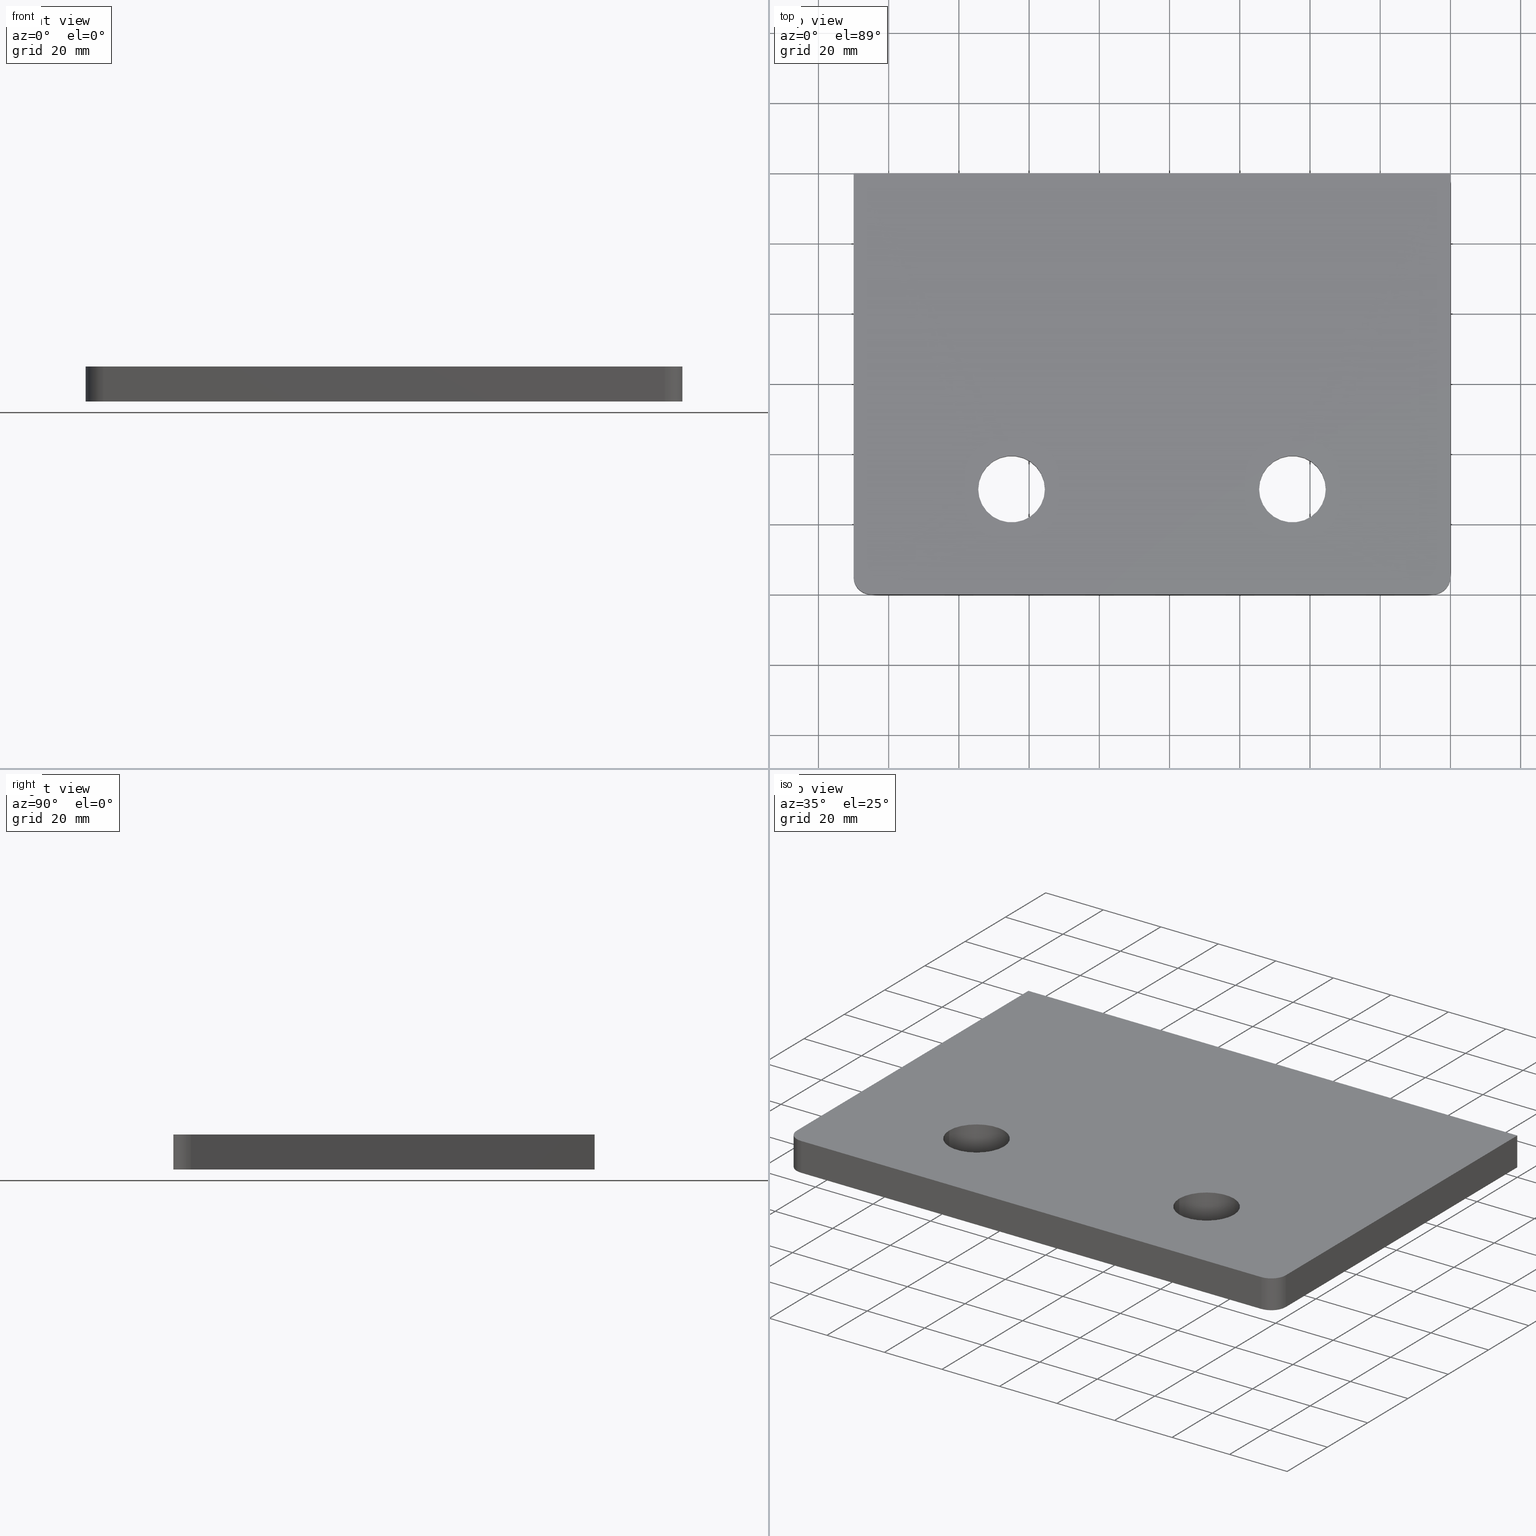
[diagram: canonical four-view strip — front | top / right | iso, engineering-drawing reading convention]
A machine part, canonical four-view strip (front | top / right | iso — engineering-drawing reading convention). The complete STEP part file that produces these views, byte-faithful:
ISO-10303-21;
HEADER;
FILE_DESCRIPTION (( 'STEP AP203' ),
    '1' );
FILE_NAME ('20-11_REV_.step',
    '2026-01-19T05:52:12',
    ( '' ),
    ( '' ),
    'SwSTEP 2.0',
    'SolidWorks 2025',
    '' );
FILE_SCHEMA (( 'CONFIG_CONTROL_DESIGN' ));
ENDSEC;

DATA;
#1 = VERTEX_POINT ( 'NONE', #235 ) ;
#2 = PRODUCT_DEFINITION_SHAPE ( 'NONE', 'NONE',  #125 ) ;
#3 = DIRECTION ( 'NONE',  ( 0.000000000000000000, -0.000000000000000000, 1.000000000000000000 ) ) ;
#4 = PERSON_AND_ORGANIZATION ( #175, #405 ) ;
#5 = ADVANCED_FACE ( 'NONE', ( #243 ), #33, .T. ) ;
#6 = LOCAL_TIME ( 16, 52, 12.00000000000000000, #100 ) ;
#7 = DIRECTION ( 'NONE',  ( 1.000000000000000000, 1.296684846156020550E-16, 0.000000000000000000 ) ) ;
#8 = PERSON_AND_ORGANIZATION ( #175, #405 ) ;
#9 = CARTESIAN_POINT ( 'NONE',  ( -170.0000000000000000, 4.999999999999978684, -10.00000000000000000 ) ) ;
#10 = EDGE_CURVE ( 'NONE', #270, #453, #131, .T. ) ;
#11 = DIRECTION ( 'NONE',  ( 1.000000000000000000, -8.128421619622342965E-33, 0.000000000000000000 ) ) ;
#12 = CC_DESIGN_PERSON_AND_ORGANIZATION_ASSIGNMENT ( #224, #362, ( #125 ) ) ;
#13 = APPROVAL_PERSON_ORGANIZATION ( #356, #429, #39 ) ;
#14 = CARTESIAN_POINT ( 'NONE',  ( -125.0000000000000000, 29.99999999999999289, 3.061616997868380183E-16 ) ) ;
#15 = VERTEX_POINT ( 'NONE', #201 ) ;
#16 = DATE_AND_TIME ( #286, #230 ) ;
#17 = ADVANCED_FACE ( 'NONE', ( #342 ), #411, .F. ) ;
#18 = ORIENTED_EDGE ( 'NONE', *, *, #139, .T. ) ;
#19 = AXIS2_PLACEMENT_3D ( 'NONE', #137, #183, #315 ) ;
#20 = VECTOR ( 'NONE', #174, 1000.000000000000000 ) ;
#21 = AXIS2_PLACEMENT_3D ( 'NONE', #265, #120, #145 ) ;
#22 = DIRECTION ( 'NONE',  ( 1.000000000000000000, 0.000000000000000000, 0.000000000000000000 ) ) ;
#23 = DIRECTION ( 'NONE',  ( -0.000000000000000000, -0.000000000000000000, 1.000000000000000000 ) ) ;
#24 = VERTEX_POINT ( 'NONE', #397 ) ;
#25 = DIRECTION ( 'NONE',  ( 0.000000000000000000, 0.000000000000000000, 1.000000000000000000 ) ) ;
#26 = ORIENTED_EDGE ( 'NONE', *, *, #275, .T. ) ;
#27 = EDGE_LOOP ( 'NONE', ( #237, #146 ) ) ;
#28 = CARTESIAN_POINT ( 'NONE',  ( -170.0000000000000000, -2.204364238465235191E-14, -10.00000000000000000 ) ) ;
#29 = ORIENTED_EDGE ( 'NONE', *, *, #282, .T. ) ;
#30 = CC_DESIGN_PERSON_AND_ORGANIZATION_ASSIGNMENT ( #4, #94, ( #352 ) ) ;
#31 = FACE_OUTER_BOUND ( 'NONE', #404, .T. ) ;
#32 = VECTOR ( 'NONE', #156, 1000.000000000000000 ) ;
#33 = CYLINDRICAL_SURFACE ( 'NONE', #171, 5.000000000000004441 ) ;
#34 = CC_DESIGN_SECURITY_CLASSIFICATION ( #261, ( #367 ) ) ;
#35 =( LENGTH_UNIT ( ) NAMED_UNIT ( * ) SI_UNIT ( .MILLI., .METRE. ) );
#36 = DIRECTION ( 'NONE',  ( 1.000000000000000000, 0.000000000000000000, 0.000000000000000000 ) ) ;
#37 =( NAMED_UNIT ( * ) SI_UNIT ( $, .STERADIAN. ) SOLID_ANGLE_UNIT ( ) );
#38 = DIRECTION ( 'NONE',  ( 1.000000000000000000, 0.000000000000000000, -0.000000000000000000 ) ) ;
#39 = APPROVAL_ROLE ( '' ) ;
#40 = DIRECTION ( 'NONE',  ( 1.000000000000000000, 0.000000000000000000, 0.000000000000000000 ) ) ;
#41 = PERSON_AND_ORGANIZATION ( #175, #405 ) ;
#42 = AXIS2_PLACEMENT_3D ( 'NONE', #165, #309, #40 ) ;
#43 = PLANE ( 'NONE',  #268 ) ;
#44 = LINE ( 'NONE', #70, #437 ) ;
#45 = COORDINATED_UNIVERSAL_TIME_OFFSET ( 10, 0, .AHEAD. ) ;
#46 = LINE ( 'NONE', #336, #432 ) ;
#47 = VERTEX_POINT ( 'NONE', #323 ) ;
#48 = PERSON_AND_ORGANIZATION ( #175, #405 ) ;
#49 = CC_DESIGN_APPROVAL ( #109, ( #261 ) ) ;
#50 = EDGE_LOOP ( 'NONE', ( #88, #240, #108, #375 ) ) ;
#51 = EDGE_CURVE ( 'NONE', #262, #64, #69, .T. ) ;
#52 = ORIENTED_EDGE ( 'NONE', *, *, #178, .T. ) ;
#53 = CARTESIAN_POINT ( 'NONE',  ( 4.064210809811171209E-32, 4.999999999999999112, -10.00000000000000000 ) ) ;
#54 = CC_DESIGN_APPROVAL ( #429, ( #367 ) ) ;
#55 = AXIS2_PLACEMENT_3D ( 'NONE', #14, #200, #303 ) ;
#56 = LINE ( 'NONE', #222, #419 ) ;
#57 = VERTEX_POINT ( 'NONE', #359 ) ;
#58 = CYLINDRICAL_SURFACE ( 'NONE', #199, 5.000000000000000000 ) ;
#59 = ORIENTED_EDGE ( 'NONE', *, *, #220, .T. ) ;
#60 = DIRECTION ( 'NONE',  ( 0.000000000000000000, 0.000000000000000000, 1.000000000000000000 ) ) ;
#61 = DIRECTION ( 'NONE',  ( 1.000000000000000000, 1.296684846156020550E-16, -0.000000000000000000 ) ) ;
#62 = DIRECTION ( 'NONE',  ( 1.000000000000000000, 0.000000000000000000, 0.000000000000000000 ) ) ;
#63 = ADVANCED_FACE ( 'NONE', ( #212 ), #353, .T. ) ;
#64 = VERTEX_POINT ( 'NONE', #280 ) ;
#65 = DIRECTION ( 'NONE',  ( -0.000000000000000000, -0.000000000000000000, -1.000000000000000000 ) ) ;
#66 = CC_DESIGN_DATE_AND_TIME_ASSIGNMENT ( #16, #142, ( #125 ) ) ;
#67 = ORIENTED_EDGE ( 'NONE', *, *, #155, .F. ) ;
#68 = CARTESIAN_POINT ( 'NONE',  ( -134.5000000000000000, 29.99999999999999289, -10.00000000000000000 ) ) ;
#69 = CIRCLE ( 'NONE', #144, 9.499999999999994671 ) ;
#70 = CARTESIAN_POINT ( 'NONE',  ( 9.754105943546810464E-31, 120.0000000000000000, -10.00000000000000000 ) ) ;
#71 = EDGE_CURVE ( 'NONE', #270, #47, #410, .T. ) ;
#72 = CARTESIAN_POINT ( 'NONE',  ( -35.50000000000001421, 29.99999999999999289, 0.000000000000000000 ) ) ;
#73 = DIRECTION ( 'NONE',  ( 0.000000000000000000, -0.000000000000000000, 1.000000000000000000 ) ) ;
#74 = LINE ( 'NONE', #9, #126 ) ;
#75 = DATE_AND_TIME ( #147, #116 ) ;
#76 = FACE_OUTER_BOUND ( 'NONE', #232, .T. ) ;
#77 = VECTOR ( 'NONE', #117, 1000.000000000000000 ) ;
#78 = FACE_BOUND ( 'NONE', #27, .T. ) ;
#79 = DIRECTION ( 'NONE',  ( -1.000000000000000000, 0.000000000000000000, 0.000000000000000000 ) ) ;
#80 = ORIENTED_EDGE ( 'NONE', *, *, #373, .F. ) ;
#81 = ORIENTED_EDGE ( 'NONE', *, *, #233, .T. ) ;
#82 = ORIENTED_EDGE ( 'NONE', *, *, #114, .T. ) ;
#83 = LINE ( 'NONE', #194, #32 ) ;
#84 = ADVANCED_FACE ( 'NONE', ( #78, #96, #76 ), #133, .T. ) ;
#85 = PLANE ( 'NONE',  #325 ) ;
#86 = EDGE_LOOP ( 'NONE', ( #345, #442 ) ) ;
#87 = FACE_OUTER_BOUND ( 'NONE', #229, .T. ) ;
#88 = ORIENTED_EDGE ( 'NONE', *, *, #242, .F. ) ;
#89 = LINE ( 'NONE', #326, #452 ) ;
#90 = DIRECTION ( 'NONE',  ( 1.000000000000000000, 0.000000000000000000, 0.000000000000000000 ) ) ;
#91 = APPLICATION_PROTOCOL_DEFINITION ( 'international standard', 'config_control_design', 1994, #343 ) ;
#92 = AXIS2_PLACEMENT_3D ( 'NONE', #344, #73, #207 ) ;
#93 = ORIENTED_EDGE ( 'NONE', *, *, #454, .T. ) ;
#94 = PERSON_AND_ORGANIZATION_ROLE ( 'design_owner' ) ;
#95 = VERTEX_POINT ( 'NONE', #101 ) ;
#96 = FACE_BOUND ( 'NONE', #297, .T. ) ;
#97 = LINE ( 'NONE', #455, #20 ) ;
#98 = AXIS2_PLACEMENT_3D ( 'NONE', #434, #269, #412 ) ;
#99 = CARTESIAN_POINT ( 'NONE',  ( 0.000000000000000000, 0.000000000000000000, 0.000000000000000000 ) ) ;
#100 = COORDINATED_UNIVERSAL_TIME_OFFSET ( 10, 0, .AHEAD. ) ;
#101 = CARTESIAN_POINT ( 'NONE',  ( -54.50000000000000711, 29.99999999999999289, 3.061616997868380183E-16 ) ) ;
#102 = PERSON_AND_ORGANIZATION_ROLE ( 'creator' ) ;
#103 = DIRECTION ( 'NONE',  ( 1.296684846156020550E-16, -1.000000000000000000, 0.000000000000000000 ) ) ;
#104 = FACE_OUTER_BOUND ( 'NONE', #115, .T. ) ;
#105 = CARTESIAN_POINT ( 'NONE',  ( -134.5000000000000000, 29.99999999999999289, 3.061616997868380183E-16 ) ) ;
#106 = LINE ( 'NONE', #414, #312 ) ;
#107 = EDGE_LOOP ( 'NONE', ( #195, #153, #52, #415 ) ) ;
#108 = ORIENTED_EDGE ( 'NONE', *, *, #155, .T. ) ;
#109 = APPROVAL ( #295, 'UNSPECIFIED' ) ;
#110 = AXIS2_PLACEMENT_3D ( 'NONE', #389, #132, #123 ) ;
#111 = ORIENTED_EDGE ( 'NONE', *, *, #454, .F. ) ;
#112 = ORIENTED_EDGE ( 'NONE', *, *, #114, .F. ) ;
#113 = LINE ( 'NONE', #371, #324 ) ;
#114 = EDGE_CURVE ( 'NONE', #24, #369, #219, .T. ) ;
#115 = EDGE_LOOP ( 'NONE', ( #439, #449, #368, #335, #306, #388 ) ) ;
#116 = LOCAL_TIME ( 16, 52, 12.00000000000000000, #360 ) ;
#117 = DIRECTION ( 'NONE',  ( 0.000000000000000000, 0.000000000000000000, 1.000000000000000000 ) ) ;
#118 = VECTOR ( 'NONE', #172, 1000.000000000000000 ) ;
#119 = ORIENTED_EDGE ( 'NONE', *, *, #10, .T. ) ;
#120 = DIRECTION ( 'NONE',  ( -0.000000000000000000, -0.000000000000000000, 1.000000000000000000 ) ) ;
#121 = ORIENTED_EDGE ( 'NONE', *, *, #373, .T. ) ;
#122 = EDGE_CURVE ( 'NONE', #24, #370, #376, .T. ) ;
#123 = DIRECTION ( 'NONE',  ( 1.000000000000000000, 0.000000000000000000, 0.000000000000000000 ) ) ;
#124 = VERTEX_POINT ( 'NONE', #173 ) ;
#125 = PRODUCT_DEFINITION ( 'UNKNOWN', '', #367, #154 ) ;
#126 = VECTOR ( 'NONE', #390, 1000.000000000000000 ) ;
#127 = EDGE_LOOP ( 'NONE', ( #272, #260, #82, #29 ) ) ;
#128 = AXIS2_PLACEMENT_3D ( 'NONE', #184, #441, #257 ) ;
#129 = LINE ( 'NONE', #28, #118 ) ;
#130 = ADVANCED_FACE ( 'NONE', ( #285, #135, #104 ), #43, .F. ) ;
#131 = LINE ( 'NONE', #203, #150 ) ;
#132 = DIRECTION ( 'NONE',  ( 0.000000000000000000, 0.000000000000000000, 1.000000000000000000 ) ) ;
#133 = PLANE ( 'NONE',  #208 ) ;
#134 = VECTOR ( 'NONE', #241, 1000.000000000000000 ) ;
#135 = FACE_BOUND ( 'NONE', #86, .T. ) ;
#136 = DATE_AND_TIME ( #427, #291 ) ;
#137 = CARTESIAN_POINT ( 'NONE',  ( -165.0000000000000000, 4.999999999999978684, -10.00000000000000000 ) ) ;
#138 = MANIFOLD_SOLID_BREP ( 'Fillet1', #348 ) ;
#139 = EDGE_CURVE ( 'NONE', #47, #408, #74, .T. ) ;
#140 = APPROVAL_DATE_TIME ( #136, #109 ) ;
#141 = DIRECTION ( 'NONE',  ( -0.000000000000000000, -0.000000000000000000, 1.000000000000000000 ) ) ;
#142 = DATE_TIME_ROLE ( 'creation_date' ) ;
#143 = FACE_OUTER_BOUND ( 'NONE', #313, .T. ) ;
#144 = AXIS2_PLACEMENT_3D ( 'NONE', #288, #394, #245 ) ;
#145 = DIRECTION ( 'NONE',  ( 1.000000000000000000, 0.000000000000000000, 0.000000000000000000 ) ) ;
#146 = ORIENTED_EDGE ( 'NONE', *, *, #188, .F. ) ;
#147 = CALENDAR_DATE ( 2026, 19, 1 ) ;
#148 = VERTEX_POINT ( 'NONE', #210 ) ;
#149 = ORIENTED_EDGE ( 'NONE', *, *, #275, .F. ) ;
#150 = VECTOR ( 'NONE', #61, 1000.000000000000000 ) ;
#151 = AXIS2_PLACEMENT_3D ( 'NONE', #346, #421, #62 ) ;
#152 = CIRCLE ( 'NONE', #276, 5.000000000000000000 ) ;
#153 = ORIENTED_EDGE ( 'NONE', *, *, #51, .F. ) ;
#154 = DESIGN_CONTEXT ( 'detailed design', #302, 'design' ) ;
#155 = EDGE_CURVE ( 'NONE', #95, #1, #332, .T. ) ;
#156 = DIRECTION ( 'NONE',  ( 8.128421619622342965E-33, 1.000000000000000000, 0.000000000000000000 ) ) ;
#157 = DIRECTION ( 'NONE',  ( -0.000000000000000000, 0.000000000000000000, -1.000000000000000000 ) ) ;
#158 = ORIENTED_EDGE ( 'NONE', *, *, #226, .F. ) ;
#159 = CYLINDRICAL_SURFACE ( 'NONE', #98, 9.499999999999994671 ) ;
#160 = ADVANCED_FACE ( 'NONE', ( #179 ), #361, .T. ) ;
#161 = ORIENTED_EDGE ( 'NONE', *, *, #358, .T. ) ;
#162 = CARTESIAN_POINT ( 'NONE',  ( -4.999999999999999112, -6.483424230780101763E-16, -10.00000000000000000 ) ) ;
#163 = ORIENTED_EDGE ( 'NONE', *, *, #321, .T. ) ;
#164 = CARTESIAN_POINT ( 'NONE',  ( -45.00000000000001421, 29.99999999999999289, 3.061616997868380183E-16 ) ) ;
#165 = CARTESIAN_POINT ( 'NONE',  ( -45.00000000000001421, 29.99999999999999289, 0.000000000000000000 ) ) ;
#166 = ADVANCED_FACE ( 'NONE', ( #250 ), #247, .T. ) ;
#167 = DIRECTION ( 'NONE',  ( 0.000000000000000000, -0.000000000000000000, 1.000000000000000000 ) ) ;
#168 = AXIS2_PLACEMENT_3D ( 'NONE', #319, #103, #7 ) ;
#169 = LOCAL_TIME ( 16, 52, 12.00000000000000000, #45 ) ;
#170 = DIRECTION ( 'NONE',  ( 0.000000000000000000, 0.000000000000000000, 1.000000000000000000 ) ) ;
#171 = AXIS2_PLACEMENT_3D ( 'NONE', #418, #170, #90 ) ;
#172 = DIRECTION ( 'NONE',  ( -0.000000000000000000, -1.000000000000000000, -0.000000000000000000 ) ) ;
#173 = CARTESIAN_POINT ( 'NONE',  ( -165.0000000000000000, -2.139529996157434193E-14, 0.000000000000000000 ) ) ;
#174 = DIRECTION ( 'NONE',  ( -0.000000000000000000, -0.000000000000000000, 1.000000000000000000 ) ) ;
#175 = PERSON ( 'UNSPECIFIED', 'UNSPECIFIED', 'UNSPECIFIED', ('UNSPECIFIED'), ('UNSPECIFIED'), ('UNSPECIFIED') ) ;
#176 = DIRECTION ( 'NONE',  ( 8.128421619622342965E-33, 1.000000000000000000, 0.000000000000000000 ) ) ;
#177 = UNCERTAINTY_MEASURE_WITH_UNIT (LENGTH_MEASURE( 1.000000000000000082E-05 ), #35, 'distance_accuracy_value', 'NONE');
#178 = EDGE_CURVE ( 'NONE', #262, #1, #392, .T. ) ;
#179 = FACE_OUTER_BOUND ( 'NONE', #380, .T. ) ;
#180 = CIRCLE ( 'NONE', #128, 9.499999999999994671 ) ;
#181 = PERSON_AND_ORGANIZATION_ROLE ( 'classification_officer' ) ;
#182 = CARTESIAN_POINT ( 'NONE',  ( 9.754105943546810464E-31, 120.0000000000000000, -10.00000000000000000 ) ) ;
#183 = DIRECTION ( 'NONE',  ( -0.000000000000000000, 0.000000000000000000, -1.000000000000000000 ) ) ;
#184 = CARTESIAN_POINT ( 'NONE',  ( -45.00000000000001421, 29.99999999999999289, -10.00000000000000000 ) ) ;
#185 = ORIENTED_EDGE ( 'NONE', *, *, #403, .T. ) ;
#186 = COORDINATED_UNIVERSAL_TIME_OFFSET ( 10, 0, .AHEAD. ) ;
#187 = ORIENTED_EDGE ( 'NONE', *, *, #196, .T. ) ;
#188 = EDGE_CURVE ( 'NONE', #223, #369, #417, .T. ) ;
#189 = VECTOR ( 'NONE', #217, 1000.000000000000000 ) ;
#190 = VECTOR ( 'NONE', #65, 1000.000000000000000 ) ;
#191 = CARTESIAN_POINT ( 'NONE',  ( -5.000000000000000000, 4.999999999999999112, -10.00000000000000000 ) ) ;
#192 = CIRCLE ( 'NONE', #55, 9.499999999999994671 ) ;
#193 = CC_DESIGN_PERSON_AND_ORGANIZATION_ASSIGNMENT ( #41, #215, ( #367 ) ) ;
#194 = CARTESIAN_POINT ( 'NONE',  ( 0.000000000000000000, 0.000000000000000000, 0.000000000000000000 ) ) ;
#195 = ORIENTED_EDGE ( 'NONE', *, *, #314, .F. ) ;
#196 = EDGE_CURVE ( 'NONE', #446, #277, #44, .T. ) ;
#197 = CARTESIAN_POINT ( 'NONE',  ( -5.000000000000000000, 4.999999999999999112, -10.00000000000000000 ) ) ;
#198 = ORIENTED_EDGE ( 'NONE', *, *, #220, .F. ) ;
#199 = AXIS2_PLACEMENT_3D ( 'NONE', #197, #338, #393 ) ;
#200 = DIRECTION ( 'NONE',  ( -0.000000000000000000, -0.000000000000000000, 1.000000000000000000 ) ) ;
#201 = CARTESIAN_POINT ( 'NONE',  ( -4.999999999999999112, -6.483424230780101763E-16, 0.000000000000000000 ) ) ;
#202 = DIRECTION ( 'NONE',  ( 1.000000000000000000, 0.000000000000000000, 0.000000000000000000 ) ) ;
#203 = CARTESIAN_POINT ( 'NONE',  ( 0.000000000000000000, 0.000000000000000000, -10.00000000000000000 ) ) ;
#204 = PERSON_AND_ORGANIZATION ( #175, #405 ) ;
#205 = VERTEX_POINT ( 'NONE', #433 ) ;
#206 = EDGE_CURVE ( 'NONE', #124, #15, #106, .T. ) ;
#207 = DIRECTION ( 'NONE',  ( 1.000000000000000000, 0.000000000000000000, 0.000000000000000000 ) ) ;
#208 = AXIS2_PLACEMENT_3D ( 'NONE', #99, #3, #38 ) ;
#209 = CIRCLE ( 'NONE', #92, 5.000000000000004441 ) ;
#210 = CARTESIAN_POINT ( 'NONE',  ( 4.064210809811171209E-32, 4.999999999999999112, 0.000000000000000000 ) ) ;
#211 = MECHANICAL_CONTEXT ( 'NONE', #343, 'mechanical' ) ;
#212 = FACE_OUTER_BOUND ( 'NONE', #227, .T. ) ;
#213 = EDGE_CURVE ( 'NONE', #148, #205, #271, .T. ) ;
#214 = CARTESIAN_POINT ( 'NONE',  ( -45.00000000000001421, 29.99999999999999289, 3.061616997868380183E-16 ) ) ;
#215 = PERSON_AND_ORGANIZATION_ROLE ( 'design_supplier' ) ;
#216 = AXIS2_PLACEMENT_3D ( 'NONE', #349, #167, #416 ) ;
#217 = DIRECTION ( 'NONE',  ( -0.000000000000000000, -0.000000000000000000, 1.000000000000000000 ) ) ;
#218 = VECTOR ( 'NONE', #334, 1000.000000000000000 ) ;
#219 = LINE ( 'NONE', #287, #189 ) ;
#220 = EDGE_CURVE ( 'NONE', #277, #57, #89, .T. ) ;
#221 = ADVANCED_BREP_SHAPE_REPRESENTATION ( '20-11_REV_', ( #138, #110 ), #445 ) ;
#222 = CARTESIAN_POINT ( 'NONE',  ( 9.754105943546810464E-31, 120.0000000000000000, -10.00000000000000000 ) ) ;
#223 = VERTEX_POINT ( 'NONE', #105 ) ;
#224 = PERSON_AND_ORGANIZATION ( #175, #405 ) ;
#225 = CC_DESIGN_APPROVAL ( #440, ( #125 ) ) ;
#226 = EDGE_CURVE ( 'NONE', #148, #406, #83, .T. ) ;
#227 = EDGE_LOOP ( 'NONE', ( #158, #438, #81, #333 ) ) ;
#228 = CARTESIAN_POINT ( 'NONE',  ( -35.50000000000001421, 29.99999999999999289, -10.00000000000000000 ) ) ;
#229 = EDGE_LOOP ( 'NONE', ( #337, #435, #80, #304 ) ) ;
#230 = LOCAL_TIME ( 16, 52, 12.00000000000000000, #293 ) ;
#231 = DIRECTION ( 'NONE',  ( 8.128421619622342965E-33, 1.000000000000000000, 0.000000000000000000 ) ) ;
#232 = EDGE_LOOP ( 'NONE', ( #382, #121, #413, #26, #185, #161 ) ) ;
#233 = EDGE_CURVE ( 'NONE', #205, #446, #113, .T. ) ;
#234 = DIRECTION ( 'NONE',  ( 0.000000000000000000, -0.000000000000000000, 1.000000000000000000 ) ) ;
#235 = CARTESIAN_POINT ( 'NONE',  ( -35.50000000000001421, 29.99999999999999289, 3.061616997868380183E-16 ) ) ;
#236 = CARTESIAN_POINT ( 'NONE',  ( -165.0000000000000000, -2.139529996157434193E-14, -10.00000000000000000 ) ) ;
#237 = ORIENTED_EDGE ( 'NONE', *, *, #282, .F. ) ;
#238 = APPLICATION_PROTOCOL_DEFINITION ( 'international standard', 'config_control_design', 1994, #302 ) ;
#239 = AXIS2_PLACEMENT_3D ( 'NONE', #426, #249, #430 ) ;
#240 = ORIENTED_EDGE ( 'NONE', *, *, #314, .T. ) ;
#241 = DIRECTION ( 'NONE',  ( -0.000000000000000000, -1.000000000000000000, -0.000000000000000000 ) ) ;
#242 = EDGE_CURVE ( 'NONE', #64, #262, #180, .T. ) ;
#243 = FACE_OUTER_BOUND ( 'NONE', #364, .T. ) ;
#244 = CALENDAR_DATE ( 2026, 19, 1 ) ;
#245 = DIRECTION ( 'NONE',  ( 1.000000000000000000, 0.000000000000000000, 0.000000000000000000 ) ) ;
#246 = APPROVAL_PERSON_ORGANIZATION ( #8, #109, #431 ) ;
#247 = PLANE ( 'NONE',  #399 ) ;
#248 = ADVANCED_FACE ( 'NONE', ( #340 ), #443, .F. ) ;
#249 = DIRECTION ( 'NONE',  ( 0.000000000000000000, -0.000000000000000000, 1.000000000000000000 ) ) ;
#250 = FACE_OUTER_BOUND ( 'NONE', #339, .T. ) ;
#251 = DATE_AND_TIME ( #322, #169 ) ;
#252 = VECTOR ( 'NONE', #141, 1000.000000000000000 ) ;
#253 = AXIS2_PLACEMENT_3D ( 'NONE', #164, #384, #202 ) ;
#254 = CARTESIAN_POINT ( 'NONE',  ( -125.0000000000000000, 29.99999999999999289, 3.061616997868380183E-16 ) ) ;
#255 = AXIS2_PLACEMENT_3D ( 'NONE', #254, #401, #350 ) ;
#256 = APPROVAL_STATUS ( 'not_yet_approved' ) ;
#257 = DIRECTION ( 'NONE',  ( 1.000000000000000000, 0.000000000000000000, 0.000000000000000000 ) ) ;
#258 = PERSON_AND_ORGANIZATION ( #175, #405 ) ;
#259 = DIRECTION ( 'NONE',  ( 1.000000000000000000, 0.000000000000000000, 0.000000000000000000 ) ) ;
#260 = ORIENTED_EDGE ( 'NONE', *, *, #122, .F. ) ;
#261 = SECURITY_CLASSIFICATION ( '', '', #328 ) ;
#262 = VERTEX_POINT ( 'NONE', #228 ) ;
#263 = ORIENTED_EDGE ( 'NONE', *, *, #188, .T. ) ;
#264 = ORIENTED_EDGE ( 'NONE', *, *, #444, .T. ) ;
#265 = CARTESIAN_POINT ( 'NONE',  ( -125.0000000000000000, 29.99999999999999289, 0.000000000000000000 ) ) ;
#266 = EDGE_CURVE ( 'NONE', #205, #453, #152, .T. ) ;
#267 = ORIENTED_EDGE ( 'NONE', *, *, #206, .F. ) ;
#268 = AXIS2_PLACEMENT_3D ( 'NONE', #428, #425, #423 ) ;
#269 = DIRECTION ( 'NONE',  ( -0.000000000000000000, -0.000000000000000000, 1.000000000000000000 ) ) ;
#270 = VERTEX_POINT ( 'NONE', #236 ) ;
#271 = LINE ( 'NONE', #53, #218 ) ;
#272 = ORIENTED_EDGE ( 'NONE', *, *, #444, .F. ) ;
#273 = CARTESIAN_POINT ( 'NONE',  ( -115.5000000000000000, 29.99999999999999289, 3.061616997868380183E-16 ) ) ;
#274 = ORIENTED_EDGE ( 'NONE', *, *, #296, .F. ) ;
#275 = EDGE_CURVE ( 'NONE', #406, #57, #409, .T. ) ;
#276 = AXIS2_PLACEMENT_3D ( 'NONE', #191, #157, #22 ) ;
#277 = VERTEX_POINT ( 'NONE', #381 ) ;
#278 = CYLINDRICAL_SURFACE ( 'NONE', #151, 9.499999999999994671 ) ;
#279 = CC_DESIGN_DATE_AND_TIME_ASSIGNMENT ( #251, #289, ( #261 ) ) ;
#280 = CARTESIAN_POINT ( 'NONE',  ( -54.50000000000000711, 29.99999999999999289, -10.00000000000000000 ) ) ;
#281 =( NAMED_UNIT ( * ) PLANE_ANGLE_UNIT ( ) SI_UNIT ( $, .RADIAN. ) );
#282 = EDGE_CURVE ( 'NONE', #369, #223, #192, .T. ) ;
#283 = CARTESIAN_POINT ( 'NONE',  ( 0.000000000000000000, 0.000000000000000000, -10.00000000000000000 ) ) ;
#284 = APPROVAL_ROLE ( '' ) ;
#285 = FACE_BOUND ( 'NONE', #420, .T. ) ;
#286 = CALENDAR_DATE ( 2026, 19, 1 ) ;
#287 = CARTESIAN_POINT ( 'NONE',  ( -115.5000000000000000, 29.99999999999999289, 0.000000000000000000 ) ) ;
#288 = CARTESIAN_POINT ( 'NONE',  ( -45.00000000000001421, 29.99999999999999289, -10.00000000000000000 ) ) ;
#289 = DATE_TIME_ROLE ( 'classification_date' ) ;
#290 = ADVANCED_FACE ( 'NONE', ( #143 ), #85, .T. ) ;
#291 = LOCAL_TIME ( 16, 52, 12.00000000000000000, #186 ) ;
#292 = DIRECTION ( 'NONE',  ( 0.000000000000000000, 0.000000000000000000, 1.000000000000000000 ) ) ;
#293 = COORDINATED_UNIVERSAL_TIME_OFFSET ( 10, 0, .AHEAD. ) ;
#294 = FACE_OUTER_BOUND ( 'NONE', #107, .T. ) ;
#295 = APPROVAL_STATUS ( 'not_yet_approved' ) ;
#296 = EDGE_CURVE ( 'NONE', #446, #406, #56, .T. ) ;
#297 = EDGE_LOOP ( 'NONE', ( #347, #67 ) ) ;
#298 = ORIENTED_EDGE ( 'NONE', *, *, #139, .F. ) ;
#299 = CARTESIAN_POINT ( 'NONE',  ( 9.754105943546810464E-31, 120.0000000000000000, 0.000000000000000000 ) ) ;
#300 = CARTESIAN_POINT ( 'NONE',  ( -170.0000000000000000, -2.204364238465235191E-14, -10.00000000000000000 ) ) ;
#301 = ORIENTED_EDGE ( 'NONE', *, *, #403, .F. ) ;
#302 = APPLICATION_CONTEXT ( 'configuration controlled 3d designs of mechanical parts and assemblies' ) ;
#303 = DIRECTION ( 'NONE',  ( 1.000000000000000000, 0.000000000000000000, 0.000000000000000000 ) ) ;
#304 = ORIENTED_EDGE ( 'NONE', *, *, #321, .F. ) ;
#305 = CARTESIAN_POINT ( 'NONE',  ( -165.0000000000000000, -2.139529996157434193E-14, -10.00000000000000000 ) ) ;
#306 = ORIENTED_EDGE ( 'NONE', *, *, #387, .F. ) ;
#307 = EDGE_CURVE ( 'NONE', #370, #24, #318, .T. ) ;
#308 = CARTESIAN_POINT ( 'NONE',  ( 9.754105943546810464E-31, 120.0000000000000000, 0.000000000000000000 ) ) ;
#309 = DIRECTION ( 'NONE',  ( -0.000000000000000000, -0.000000000000000000, 1.000000000000000000 ) ) ;
#310 = AXIS2_PLACEMENT_3D ( 'NONE', #214, #355, #36 ) ;
#311 = APPROVAL_STATUS ( 'not_yet_approved' ) ;
#312 = VECTOR ( 'NONE', #377, 1000.000000000000000 ) ;
#313 = EDGE_LOOP ( 'NONE', ( #385, #18, #301, #198 ) ) ;
#314 = EDGE_CURVE ( 'NONE', #64, #95, #46, .T. ) ;
#315 = DIRECTION ( 'NONE',  ( 1.000000000000000000, 0.000000000000000000, 0.000000000000000000 ) ) ;
#316 = LINE ( 'NONE', #305, #190 ) ;
#317 = DIRECTION ( 'NONE',  ( -1.000000000000000000, -8.163404592832032733E-17, 0.000000000000000000 ) ) ;
#318 = CIRCLE ( 'NONE', #357, 9.499999999999994671 ) ;
#319 = CARTESIAN_POINT ( 'NONE',  ( 0.000000000000000000, 0.000000000000000000, -10.00000000000000000 ) ) ;
#320 = DIRECTION ( 'NONE',  ( -8.163404592832032733E-17, 1.000000000000000000, 0.000000000000000000 ) ) ;
#321 = EDGE_CURVE ( 'NONE', #453, #15, #363, .T. ) ;
#322 = CALENDAR_DATE ( 2026, 19, 1 ) ;
#323 = CARTESIAN_POINT ( 'NONE',  ( -170.0000000000000000, 4.999999999999976907, -10.00000000000000000 ) ) ;
#324 = VECTOR ( 'NONE', #231, 1000.000000000000000 ) ;
#325 = AXIS2_PLACEMENT_3D ( 'NONE', #300, #79, #25 ) ;
#326 = CARTESIAN_POINT ( 'NONE',  ( -170.0000000000000000, 119.9999999999999858, -10.00000000000000000 ) ) ;
#327 = ORIENTED_EDGE ( 'NONE', *, *, #307, .T. ) ;
#328 = SECURITY_CLASSIFICATION_LEVEL ( 'unclassified' ) ;
#329 = ADVANCED_FACE ( 'NONE', ( #294 ), #159, .F. ) ;
#330 = ORIENTED_EDGE ( 'NONE', *, *, #358, .F. ) ;
#331 = PRODUCT_RELATED_PRODUCT_CATEGORY ( 'detail', '', ( #352 ) ) ;
#332 = CIRCLE ( 'NONE', #310, 9.499999999999994671 ) ;
#333 = ORIENTED_EDGE ( 'NONE', *, *, #296, .T. ) ;
#334 = DIRECTION ( 'NONE',  ( -0.000000000000000000, -0.000000000000000000, -1.000000000000000000 ) ) ;
#335 = ORIENTED_EDGE ( 'NONE', *, *, #71, .T. ) ;
#336 = CARTESIAN_POINT ( 'NONE',  ( -54.50000000000000711, 29.99999999999999289, 0.000000000000000000 ) ) ;
#337 = ORIENTED_EDGE ( 'NONE', *, *, #266, .F. ) ;
#338 = DIRECTION ( 'NONE',  ( 0.000000000000000000, 0.000000000000000000, 1.000000000000000000 ) ) ;
#339 = EDGE_LOOP ( 'NONE', ( #149, #274, #187, #59 ) ) ;
#340 = FACE_OUTER_BOUND ( 'NONE', #127, .T. ) ;
#341 = ADVANCED_FACE ( 'NONE', ( #87 ), #58, .T. ) ;
#342 = FACE_OUTER_BOUND ( 'NONE', #50, .T. ) ;
#343 = APPLICATION_CONTEXT ( 'configuration controlled 3d designs of mechanical parts and assemblies' ) ;
#344 = CARTESIAN_POINT ( 'NONE',  ( -165.0000000000000000, 4.999999999999978684, 0.000000000000000000 ) ) ;
#345 = ORIENTED_EDGE ( 'NONE', *, *, #51, .T. ) ;
#346 = CARTESIAN_POINT ( 'NONE',  ( -125.0000000000000000, 29.99999999999999289, 0.000000000000000000 ) ) ;
#347 = ORIENTED_EDGE ( 'NONE', *, *, #396, .F. ) ;
#348 = CLOSED_SHELL ( 'NONE', ( #365, #17, #63, #160, #290, #166, #130, #84, #329, #248, #341, #5 ) ) ;
#349 = CARTESIAN_POINT ( 'NONE',  ( -5.000000000000000000, 4.999999999999999112, 0.000000000000000000 ) ) ;
#350 = DIRECTION ( 'NONE',  ( 1.000000000000000000, 0.000000000000000000, 0.000000000000000000 ) ) ;
#351 = CARTESIAN_POINT ( 'NONE',  ( -170.0000000000000000, 4.999999999999976907, 0.000000000000000000 ) ) ;
#352 = PRODUCT ( '20-11_REV_', '20-11_REV_', '', ( #211 ) ) ;
#353 = PLANE ( 'NONE',  #372 ) ;
#354 = APPROVAL_DATE_TIME ( #366, #440 ) ;
#355 = DIRECTION ( 'NONE',  ( -0.000000000000000000, -0.000000000000000000, 1.000000000000000000 ) ) ;
#356 = PERSON_AND_ORGANIZATION ( #175, #405 ) ;
#357 = AXIS2_PLACEMENT_3D ( 'NONE', #447, #234, #259 ) ;
#358 = EDGE_CURVE ( 'NONE', #408, #124, #209, .T. ) ;
#359 = CARTESIAN_POINT ( 'NONE',  ( -170.0000000000000000, 119.9999999999999858, 0.000000000000000000 ) ) ;
#360 = COORDINATED_UNIVERSAL_TIME_OFFSET ( 10, 0, .AHEAD. ) ;
#361 = PLANE ( 'NONE',  #168 ) ;
#362 = PERSON_AND_ORGANIZATION_ROLE ( 'creator' ) ;
#363 = LINE ( 'NONE', #407, #77 ) ;
#364 = EDGE_LOOP ( 'NONE', ( #451, #111, #330, #298 ) ) ;
#365 = ADVANCED_FACE ( 'NONE', ( #31 ), #278, .F. ) ;
#366 = DATE_AND_TIME ( #244, #6 ) ;
#367 = PRODUCT_DEFINITION_FORMATION_WITH_SPECIFIED_SOURCE ( 'ANY', '', #352, .NOT_KNOWN. ) ;
#368 = ORIENTED_EDGE ( 'NONE', *, *, #10, .F. ) ;
#369 = VERTEX_POINT ( 'NONE', #273 ) ;
#370 = VERTEX_POINT ( 'NONE', #68 ) ;
#371 = CARTESIAN_POINT ( 'NONE',  ( 0.000000000000000000, 0.000000000000000000, -10.00000000000000000 ) ) ;
#372 = AXIS2_PLACEMENT_3D ( 'NONE', #283, #11, #176 ) ;
#373 = EDGE_CURVE ( 'NONE', #15, #148, #383, .T. ) ;
#374 = APPROVAL_PERSON_ORGANIZATION ( #204, #440, #284 ) ;
#375 = ORIENTED_EDGE ( 'NONE', *, *, #178, .F. ) ;
#376 = CIRCLE ( 'NONE', #239, 9.499999999999994671 ) ;
#377 = DIRECTION ( 'NONE',  ( 1.000000000000000000, 1.296684846156020550E-16, -0.000000000000000000 ) ) ;
#378 = ORIENTED_EDGE ( 'NONE', *, *, #307, .F. ) ;
#379 = DIRECTION ( 'NONE',  ( -1.000000000000000000, -8.163404592832032733E-17, 0.000000000000000000 ) ) ;
#380 = EDGE_LOOP ( 'NONE', ( #119, #163, #267, #93 ) ) ;
#381 = CARTESIAN_POINT ( 'NONE',  ( -170.0000000000000000, 119.9999999999999858, -10.00000000000000000 ) ) ;
#382 = ORIENTED_EDGE ( 'NONE', *, *, #206, .T. ) ;
#383 = CIRCLE ( 'NONE', #216, 5.000000000000000000 ) ;
#384 = DIRECTION ( 'NONE',  ( -0.000000000000000000, -0.000000000000000000, 1.000000000000000000 ) ) ;
#385 = ORIENTED_EDGE ( 'NONE', *, *, #387, .T. ) ;
#386 = CARTESIAN_POINT ( 'NONE',  ( 9.754105943546810464E-31, 120.0000000000000000, -10.00000000000000000 ) ) ;
#387 = EDGE_CURVE ( 'NONE', #277, #47, #129, .T. ) ;
#388 = ORIENTED_EDGE ( 'NONE', *, *, #196, .F. ) ;
#389 = CARTESIAN_POINT ( 'NONE',  ( 0.000000000000000000, 0.000000000000000000, 0.000000000000000000 ) ) ;
#390 = DIRECTION ( 'NONE',  ( 0.000000000000000000, 0.000000000000000000, 1.000000000000000000 ) ) ;
#391 = CIRCLE ( 'NONE', #253, 9.499999999999994671 ) ;
#392 = LINE ( 'NONE', #72, #252 ) ;
#393 = DIRECTION ( 'NONE',  ( 1.000000000000000000, 0.000000000000000000, 0.000000000000000000 ) ) ;
#394 = DIRECTION ( 'NONE',  ( 0.000000000000000000, -0.000000000000000000, 1.000000000000000000 ) ) ;
#395 = SHAPE_DEFINITION_REPRESENTATION ( #2, #221 ) ;
#396 = EDGE_CURVE ( 'NONE', #1, #95, #391, .T. ) ;
#397 = CARTESIAN_POINT ( 'NONE',  ( -115.5000000000000000, 29.99999999999999289, -10.00000000000000000 ) ) ;
#398 = APPROVAL_DATE_TIME ( #75, #429 ) ;
#399 = AXIS2_PLACEMENT_3D ( 'NONE', #182, #320, #317 ) ;
#400 = VECTOR ( 'NONE', #379, 1000.000000000000000 ) ;
#401 = DIRECTION ( 'NONE',  ( -0.000000000000000000, -0.000000000000000000, 1.000000000000000000 ) ) ;
#402 = DIRECTION ( 'NONE',  ( -1.000000000000000000, -8.163404592832032733E-17, 0.000000000000000000 ) ) ;
#403 = EDGE_CURVE ( 'NONE', #57, #408, #450, .T. ) ;
#404 = EDGE_LOOP ( 'NONE', ( #378, #264, #263, #112 ) ) ;
#405 = ORGANIZATION ( 'UNSPECIFIED', 'UNSPECIFIED', '' ) ;
#406 = VERTEX_POINT ( 'NONE', #308 ) ;
#407 = CARTESIAN_POINT ( 'NONE',  ( -4.999999999999999112, -6.483424230780101763E-16, -10.00000000000000000 ) ) ;
#408 = VERTEX_POINT ( 'NONE', #351 ) ;
#409 = LINE ( 'NONE', #299, #400 ) ;
#410 = CIRCLE ( 'NONE', #19, 5.000000000000004441 ) ;
#411 = CYLINDRICAL_SURFACE ( 'NONE', #42, 9.499999999999994671 ) ;
#412 = DIRECTION ( 'NONE',  ( 1.000000000000000000, 0.000000000000000000, 0.000000000000000000 ) ) ;
#413 = ORIENTED_EDGE ( 'NONE', *, *, #226, .T. ) ;
#414 = CARTESIAN_POINT ( 'NONE',  ( 0.000000000000000000, 0.000000000000000000, 0.000000000000000000 ) ) ;
#415 = ORIENTED_EDGE ( 'NONE', *, *, #396, .T. ) ;
#416 = DIRECTION ( 'NONE',  ( 1.000000000000000000, 0.000000000000000000, 0.000000000000000000 ) ) ;
#417 = CIRCLE ( 'NONE', #255, 9.499999999999994671 ) ;
#418 = CARTESIAN_POINT ( 'NONE',  ( -165.0000000000000000, 4.999999999999978684, -10.00000000000000000 ) ) ;
#419 = VECTOR ( 'NONE', #60, 1000.000000000000000 ) ;
#420 = EDGE_LOOP ( 'NONE', ( #436, #327 ) ) ;
#421 = DIRECTION ( 'NONE',  ( -0.000000000000000000, -0.000000000000000000, 1.000000000000000000 ) ) ;
#422 = CC_DESIGN_PERSON_AND_ORGANIZATION_ASSIGNMENT ( #258, #181, ( #261 ) ) ;
#423 = DIRECTION ( 'NONE',  ( 1.000000000000000000, 0.000000000000000000, -0.000000000000000000 ) ) ;
#424 = CARTESIAN_POINT ( 'NONE',  ( -170.0000000000000000, -2.204364238465235191E-14, 0.000000000000000000 ) ) ;
#425 = DIRECTION ( 'NONE',  ( 0.000000000000000000, -0.000000000000000000, 1.000000000000000000 ) ) ;
#426 = CARTESIAN_POINT ( 'NONE',  ( -125.0000000000000000, 29.99999999999999289, -10.00000000000000000 ) ) ;
#427 = CALENDAR_DATE ( 2026, 19, 1 ) ;
#428 = CARTESIAN_POINT ( 'NONE',  ( 0.000000000000000000, 0.000000000000000000, -10.00000000000000000 ) ) ;
#429 = APPROVAL ( #256, 'UNSPECIFIED' ) ;
#430 = DIRECTION ( 'NONE',  ( 1.000000000000000000, 0.000000000000000000, 0.000000000000000000 ) ) ;
#431 = APPROVAL_ROLE ( '' ) ;
#432 = VECTOR ( 'NONE', #23, 1000.000000000000000 ) ;
#433 = CARTESIAN_POINT ( 'NONE',  ( 4.064210809811171209E-32, 4.999999999999999112, -10.00000000000000000 ) ) ;
#434 = CARTESIAN_POINT ( 'NONE',  ( -45.00000000000001421, 29.99999999999999289, 0.000000000000000000 ) ) ;
#435 = ORIENTED_EDGE ( 'NONE', *, *, #213, .F. ) ;
#436 = ORIENTED_EDGE ( 'NONE', *, *, #122, .T. ) ;
#437 = VECTOR ( 'NONE', #402, 1000.000000000000000 ) ;
#438 = ORIENTED_EDGE ( 'NONE', *, *, #213, .T. ) ;
#439 = ORIENTED_EDGE ( 'NONE', *, *, #233, .F. ) ;
#440 = APPROVAL ( #311, 'UNSPECIFIED' ) ;
#441 = DIRECTION ( 'NONE',  ( 0.000000000000000000, -0.000000000000000000, 1.000000000000000000 ) ) ;
#442 = ORIENTED_EDGE ( 'NONE', *, *, #242, .T. ) ;
#443 = CYLINDRICAL_SURFACE ( 'NONE', #21, 9.499999999999994671 ) ;
#444 = EDGE_CURVE ( 'NONE', #370, #223, #97, .T. ) ;
#445 =( GEOMETRIC_REPRESENTATION_CONTEXT ( 3 ) GLOBAL_UNCERTAINTY_ASSIGNED_CONTEXT ( ( #177 ) ) GLOBAL_UNIT_ASSIGNED_CONTEXT ( ( #35, #281, #37 ) ) REPRESENTATION_CONTEXT ( 'NONE', 'WORKASPACE' ) );
#446 = VERTEX_POINT ( 'NONE', #386 ) ;
#447 = CARTESIAN_POINT ( 'NONE',  ( -125.0000000000000000, 29.99999999999999289, -10.00000000000000000 ) ) ;
#448 = CC_DESIGN_PERSON_AND_ORGANIZATION_ASSIGNMENT ( #48, #102, ( #367 ) ) ;
#449 = ORIENTED_EDGE ( 'NONE', *, *, #266, .T. ) ;
#450 = LINE ( 'NONE', #424, #134 ) ;
#451 = ORIENTED_EDGE ( 'NONE', *, *, #71, .F. ) ;
#452 = VECTOR ( 'NONE', #292, 1000.000000000000000 ) ;
#453 = VERTEX_POINT ( 'NONE', #162 ) ;
#454 = EDGE_CURVE ( 'NONE', #124, #270, #316, .T. ) ;
#455 = CARTESIAN_POINT ( 'NONE',  ( -134.5000000000000000, 29.99999999999999289, 0.000000000000000000 ) ) ;
ENDSEC;
END-ISO-10303-21;
